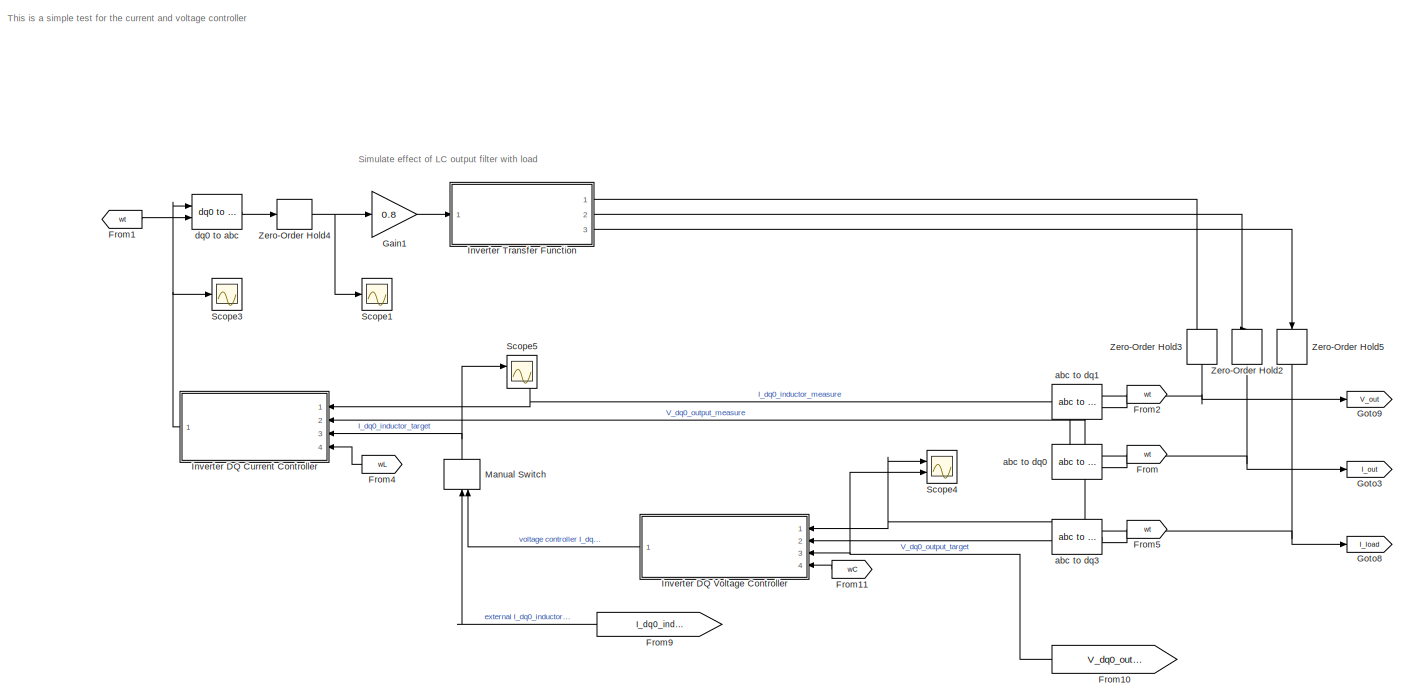
[diagram: root canvas - part 1/2, middle right region]
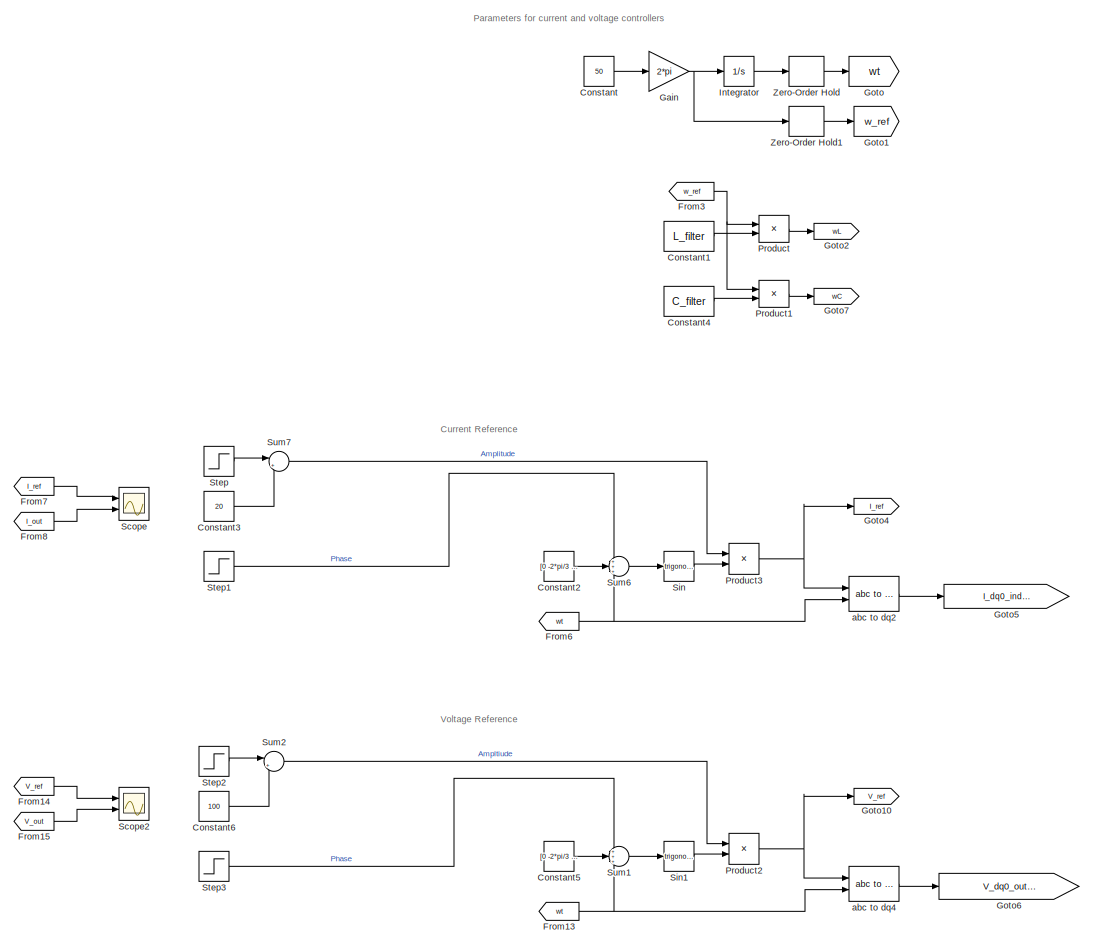
[diagram: root canvas - part 2/2, left side, full height]
MODEL slx_9476d62e2534
KIND model
CONFIG AbsTol = auto
CONFIG EnableMultiTasking = off
CONFIG FixedStep = auto
CONFIG MaxStep = auto
CONFIG MinStep = auto
CONFIG RelTol = 1e-3
CONFIG SampleTimeConstraint = Unconstrained
CONFIG SolverName = VariableStepAuto
CONFIG StartTime = 0.0
CONFIG StopTime = 1
BLOCK [Constant] Constant
  Value = 50
BLOCK [Constant] Constant1
  Value = L_filter
BLOCK [Constant] Constant2
  Value = [0 -2*pi/3 2*pi/3]
BLOCK [Constant] Constant3
  Value = 20
BLOCK [Constant] Constant4
  Value = C_filter
BLOCK [Constant] Constant5
  Value = [0 -2*pi/3 2*pi/3]
BLOCK [Constant] Constant6
  Value = 100
BLOCK [From] From
  GotoTag = wt
  NameLocation = top
BLOCK [From] From1
  GotoTag = wt
BLOCK [From] From10
  GotoTag = V_dq0_output_ref
  NameLocation = top
BLOCK [From] From11
  GotoTag = wC
  NameLocation = top
BLOCK [From] From13
  GotoTag = wt
BLOCK [From] From14
  GotoTag = V_ref
BLOCK [From] From15
  GotoTag = V_out
BLOCK [From] From2
  GotoTag = wt
  NameLocation = top
BLOCK [From] From3
  GotoTag = w_ref
BLOCK [From] From4
  GotoTag = wL
  NameLocation = top
BLOCK [From] From5
  GotoTag = wt
  NameLocation = top
BLOCK [From] From6
  GotoTag = wt
BLOCK [From] From7
  GotoTag = I_ref
BLOCK [From] From8
  GotoTag = I_out
BLOCK [From] From9
  GotoTag = I_dq0_inductor_ref
  NameLocation = top
BLOCK [Gain] Gain
  Gain = 2*pi
BLOCK [Gain] Gain1
  Gain = 0.8
BLOCK [Goto] Goto
  GotoTag = wt
BLOCK [Goto] Goto1
  GotoTag = w_ref
BLOCK [Goto] Goto10
  GotoTag = V_ref
BLOCK [Goto] Goto2
  GotoTag = wL
BLOCK [Goto] Goto3
  GotoTag = I_out
BLOCK [Goto] Goto4
  GotoTag = I_ref
BLOCK [Goto] Goto5
  GotoTag = I_dq0_inductor_ref
BLOCK [Goto] Goto6
  GotoTag = V_dq0_output_ref
BLOCK [Goto] Goto7
  GotoTag = wC
BLOCK [Goto] Goto8
  GotoTag = I_load
BLOCK [Goto] Goto9
  GotoTag = V_out
BLOCK [Integrator] Integrator
  Ports = [1, 1]
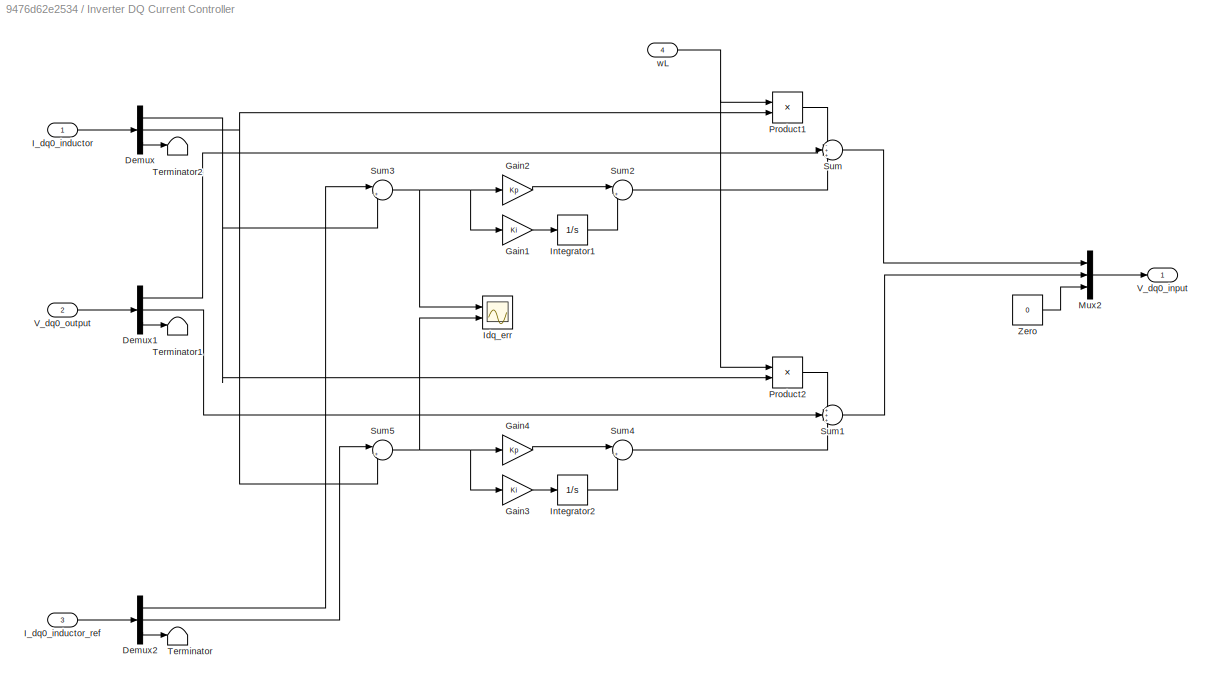
BLOCK [SubSystem] Inverter DQ Current Controller
  NameLocation = top
  Ports = [4, 1]
  RequestExecContextInheritance = off
BLOCK [Demux] Inverter DQ Current Controller/Demux
  NameLocation = top
  Outputs = 3
  Ports = [1, 3]
BLOCK [Demux] Inverter DQ Current Controller/Demux1
  NameLocation = top
  Outputs = 3
  Ports = [1, 3]
BLOCK [Demux] Inverter DQ Current Controller/Demux2
  NameLocation = top
  Outputs = 3
  Ports = [1, 3]
BLOCK [Gain] Inverter DQ Current Controller/Gain1
  Gain = Ki
  NameLocation = top
BLOCK [Gain] Inverter DQ Current Controller/Gain2
  Gain = Kp
  NameLocation = top
BLOCK [Gain] Inverter DQ Current Controller/Gain3
  Gain = Ki
  NameLocation = top
BLOCK [Gain] Inverter DQ Current Controller/Gain4
  Gain = Kp
  NameLocation = top
BLOCK [Inport] Inverter DQ Current Controller/I_dq0_inductor
BLOCK [Inport] Inverter DQ Current Controller/I_dq0_inductor_ref
  NameLocation = top
  Port = 3
BLOCK [Scope] Inverter DQ Current Controller/Idq_err
  Floating = off
  NumInputPorts = 2
  Ports = [2]
  ScopeSpecificationString = Simulink.scopes.TimeScopeBlockCfg('CurrentConfiguration', extmgr.ConfigurationSet(extmgr.Configuration('Core','General UI',true),extmgr.Configuration('Core','Source UI',true),extmgr.Configuration('Sources','WiredSimulink',true,'DataLoggingVariableName','ScopeData2'),extmgr.Configuration('Visuals','Time Domain',true,'SerializedDisplays',{struct('MinYLimReal','-3.13783','MaxYLimReal','7.30076','YLab...<+2079ch>
BLOCK [Integrator] Inverter DQ Current Controller/Integrator1
  LowerSaturationLimit = -10000
  NameLocation = top
  Ports = [1, 1]
  UpperSaturationLimit = 10000
BLOCK [Integrator] Inverter DQ Current Controller/Integrator2
  NameLocation = top
  Ports = [1, 1]
BLOCK [Mux] Inverter DQ Current Controller/Mux2
  DisplayOption = bar
  Inputs = 3
  NameLocation = top
  Ports = [3, 1]
BLOCK [Product] Inverter DQ Current Controller/Product1
  NameLocation = top
  Ports = [2, 1]
BLOCK [Product] Inverter DQ Current Controller/Product2
  NameLocation = top
  Ports = [2, 1]
BLOCK [Sum] Inverter DQ Current Controller/Sum
  Inputs = -++
  NameLocation = top
  Ports = [3, 1]
BLOCK [Sum] Inverter DQ Current Controller/Sum1
  Inputs = +++
  NameLocation = top
  Ports = [3, 1]
BLOCK [Sum] Inverter DQ Current Controller/Sum2
  Inputs = |++
  NameLocation = top
  Ports = [2, 1]
BLOCK [Sum] Inverter DQ Current Controller/Sum3
  Inputs = |+-
  NameLocation = top
  Ports = [2, 1]
BLOCK [Sum] Inverter DQ Current Controller/Sum4
  Inputs = |++
  NameLocation = top
  Ports = [2, 1]
BLOCK [Sum] Inverter DQ Current Controller/Sum5
  Inputs = |+-
  NameLocation = top
  Ports = [2, 1]
BLOCK [Terminator] Inverter DQ Current Controller/Terminator
  NameLocation = top
BLOCK [Terminator] Inverter DQ Current Controller/Terminator1
  NameLocation = top
BLOCK [Terminator] Inverter DQ Current Controller/Terminator2
  NameLocation = top
BLOCK [Outport] Inverter DQ Current Controller/V_dq0_input
  NameLocation = top
BLOCK [Inport] Inverter DQ Current Controller/V_dq0_output
  Port = 2
BLOCK [Constant] Inverter DQ Current Controller/Zero
  NameLocation = top
  OutDataTypeStr = Inherit: Inherit via back propagation
  Value = 0
BLOCK [Inport] Inverter DQ Current Controller/wL
  Port = 4
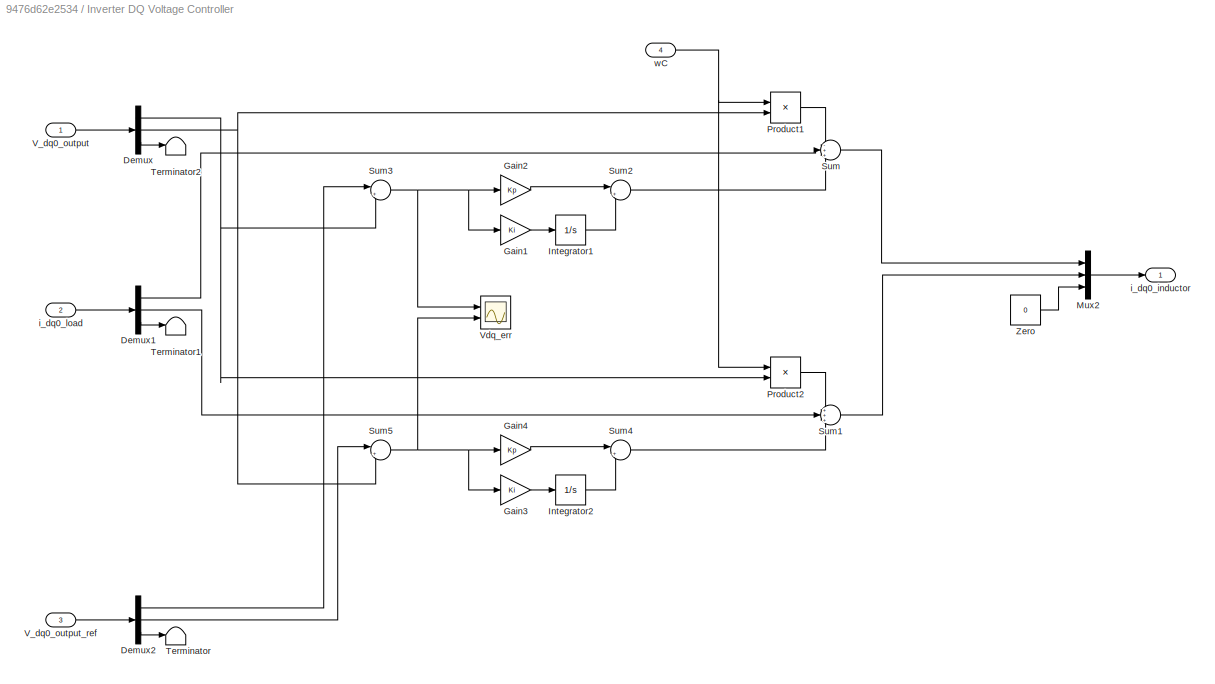
BLOCK [SubSystem] Inverter DQ Voltage Controller
  NameLocation = top
  Ports = [4, 1]
  RequestExecContextInheritance = off
BLOCK [Demux] Inverter DQ Voltage Controller/Demux
  NameLocation = top
  Outputs = 3
  Ports = [1, 3]
BLOCK [Demux] Inverter DQ Voltage Controller/Demux1
  NameLocation = top
  Outputs = 3
  Ports = [1, 3]
BLOCK [Demux] Inverter DQ Voltage Controller/Demux2
  NameLocation = top
  Outputs = 3
  Ports = [1, 3]
BLOCK [Gain] Inverter DQ Voltage Controller/Gain1
  Gain = Ki
  NameLocation = top
BLOCK [Gain] Inverter DQ Voltage Controller/Gain2
  Gain = Kp
  NameLocation = top
BLOCK [Gain] Inverter DQ Voltage Controller/Gain3
  Gain = Ki
  NameLocation = top
BLOCK [Gain] Inverter DQ Voltage Controller/Gain4
  Gain = Kp
  NameLocation = top
BLOCK [Integrator] Inverter DQ Voltage Controller/Integrator1
  LowerSaturationLimit = -10000
  NameLocation = top
  Ports = [1, 1]
  UpperSaturationLimit = 10000
BLOCK [Integrator] Inverter DQ Voltage Controller/Integrator2
  NameLocation = top
  Ports = [1, 1]
BLOCK [Mux] Inverter DQ Voltage Controller/Mux2
  DisplayOption = bar
  Inputs = 3
  NameLocation = top
  Ports = [3, 1]
BLOCK [Product] Inverter DQ Voltage Controller/Product1
  NameLocation = top
  Ports = [2, 1]
BLOCK [Product] Inverter DQ Voltage Controller/Product2
  NameLocation = top
  Ports = [2, 1]
BLOCK [Sum] Inverter DQ Voltage Controller/Sum
  Inputs = -++
  NameLocation = top
  Ports = [3, 1]
BLOCK [Sum] Inverter DQ Voltage Controller/Sum1
  Inputs = +++
  NameLocation = top
  Ports = [3, 1]
BLOCK [Sum] Inverter DQ Voltage Controller/Sum2
  Inputs = |++
  NameLocation = top
  Ports = [2, 1]
BLOCK [Sum] Inverter DQ Voltage Controller/Sum3
  Inputs = |+-
  NameLocation = top
  Ports = [2, 1]
BLOCK [Sum] Inverter DQ Voltage Controller/Sum4
  Inputs = |++
  NameLocation = top
  Ports = [2, 1]
BLOCK [Sum] Inverter DQ Voltage Controller/Sum5
  Inputs = |+-
  NameLocation = top
  Ports = [2, 1]
BLOCK [Terminator] Inverter DQ Voltage Controller/Terminator
  NameLocation = top
BLOCK [Terminator] Inverter DQ Voltage Controller/Terminator1
  NameLocation = top
BLOCK [Terminator] Inverter DQ Voltage Controller/Terminator2
  NameLocation = top
BLOCK [Inport] Inverter DQ Voltage Controller/V_dq0_output
BLOCK [Inport] Inverter DQ Voltage Controller/V_dq0_output_ref
  NameLocation = top
  Port = 3
BLOCK [Scope] Inverter DQ Voltage Controller/Vdq_err
  Floating = off
  NumInputPorts = 2
  Ports = [2]
  ScopeSpecificationString = Simulink.scopes.TimeScopeBlockCfg('CurrentConfiguration', extmgr.ConfigurationSet(extmgr.Configuration('Core','General UI',true),extmgr.Configuration('Core','Source UI',true),extmgr.Configuration('Sources','WiredSimulink',true,'DataLoggingVariableName','ScopeData2'),extmgr.Configuration('Visuals','Time Domain',true,'SerializedDisplays',{struct('MinYLimReal','-676.58887','MaxYLimReal','827.52089','...<+2116ch>
BLOCK [Constant] Inverter DQ Voltage Controller/Zero
  NameLocation = top
  OutDataTypeStr = Inherit: Inherit via back propagation
  Value = 0
BLOCK [Outport] Inverter DQ Voltage Controller/i_dq0_inductor
  NameLocation = top
BLOCK [Inport] Inverter DQ Voltage Controller/i_dq0_load
  Port = 2
BLOCK [Inport] Inverter DQ Voltage Controller/wC
  Port = 4
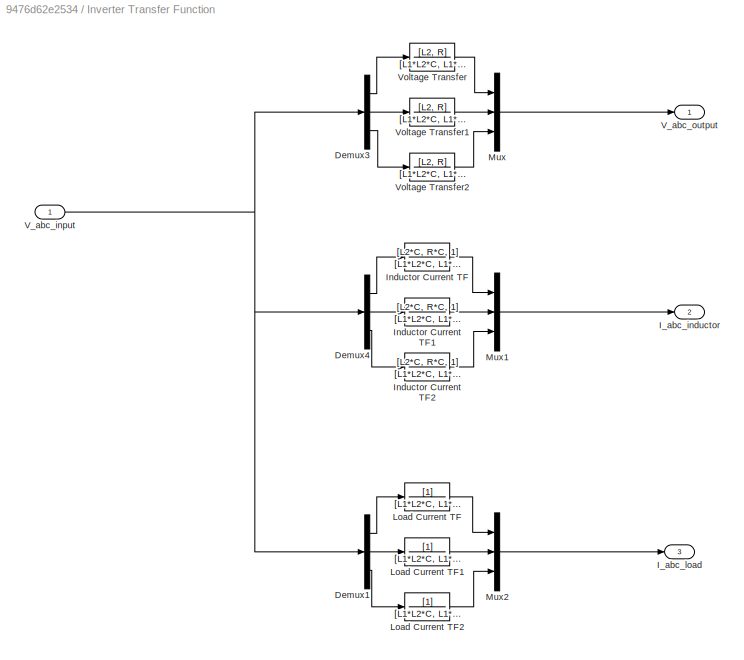
BLOCK [SubSystem] Inverter Transfer Function
  Ports = [1, 3]
  RequestExecContextInheritance = off
BLOCK [Demux] Inverter Transfer Function/Demux1
  Outputs = 3
  Ports = [1, 3]
BLOCK [Demux] Inverter Transfer Function/Demux3
  Outputs = 3
  Ports = [1, 3]
BLOCK [Demux] Inverter Transfer Function/Demux4
  Outputs = 3
  Ports = [1, 3]
BLOCK [Outport] Inverter Transfer Function/I_abc_inductor
  Port = 2
BLOCK [Outport] Inverter Transfer Function/I_abc_load
  Port = 3
BLOCK [TransferFcn] Inverter Transfer Function/Inductor Current TF
  Denominator = [L1*L2*C, L1*R*C, (L1+L2), R]
  Numerator = [L2*C, R*C, 1]
BLOCK [TransferFcn] Inverter Transfer Function/Inductor Current TF1
  Denominator = [L1*L2*C, L1*R*C, (L1+L2), R]
  Numerator = [L2*C, R*C, 1]
BLOCK [TransferFcn] Inverter Transfer Function/Inductor Current TF2
  Denominator = [L1*L2*C, L1*R*C, (L1+L2), R]
  Numerator = [L2*C, R*C, 1]
BLOCK [TransferFcn] Inverter Transfer Function/Load Current TF
  Denominator = [L1*L2*C, L1*R*C, (L1+L2), R]
BLOCK [TransferFcn] Inverter Transfer Function/Load Current TF1
  Denominator = [L1*L2*C, L1*R*C, (L1+L2), R]
BLOCK [TransferFcn] Inverter Transfer Function/Load Current TF2
  Denominator = [L1*L2*C, L1*R*C, (L1+L2), R]
BLOCK [Mux] Inverter Transfer Function/Mux
  DisplayOption = bar
  Inputs = 3
  Ports = [3, 1]
BLOCK [Mux] Inverter Transfer Function/Mux1
  DisplayOption = bar
  Inputs = 3
  Ports = [3, 1]
BLOCK [Mux] Inverter Transfer Function/Mux2
  DisplayOption = bar
  Inputs = 3
  Ports = [3, 1]
BLOCK [Inport] Inverter Transfer Function/V_abc_input
BLOCK [Outport] Inverter Transfer Function/V_abc_output
BLOCK [TransferFcn] Inverter Transfer Function/Voltage Transfer
  Denominator = [L1*L2*C, L1*R*C, (L1+L2), R]
  Numerator = [L2, R]
BLOCK [TransferFcn] Inverter Transfer Function/Voltage Transfer1
  Denominator = [L1*L2*C, L1*R*C, (L1+L2), R]
  Numerator = [L2, R]
BLOCK [TransferFcn] Inverter Transfer Function/Voltage Transfer2
  Denominator = [L1*L2*C, L1*R*C, (L1+L2), R]
  Numerator = [L2, R]
BLOCK [ManualSwitch] Manual Switch
  CurrentSetting = 0
  NameLocation = right
BLOCK [Product] Product
  Ports = [2, 1]
BLOCK [Product] Product1
  Ports = [2, 1]
BLOCK [Product] Product2
  Ports = [2, 1]
BLOCK [Product] Product3
  Ports = [2, 1]
BLOCK [Scope] Scope
  Floating = off
  NumInputPorts = 2
  Ports = [2]
  ScopeSpecificationString = Simulink.scopes.TimeScopeBlockCfg('CurrentConfiguration', extmgr.ConfigurationSet(extmgr.Configuration('Core','General UI',true),extmgr.Configuration('Core','Source UI',true),extmgr.Configuration('Sources','WiredSimulink',true),extmgr.Configuration('Visuals','Time Domain',true,'SerializedDisplays',{struct('MinYLimReal','-30.00000','MaxYLimReal','30.00000','YLabelReal','','MinYLimMag','0.00000','Ma...<+2470ch>
BLOCK [Scope] Scope1
  Floating = off
  NumInputPorts = 1
  Ports = [1]
  ScopeSpecificationString = Simulink.scopes.TimeScopeBlockCfg('CurrentConfiguration', extmgr.ConfigurationSet(extmgr.Configuration('Core','General UI',true),extmgr.Configuration('Core','Source UI',true),extmgr.Configuration('Sources','WiredSimulink',true,'DataLoggingVariableName','ScopeData1'),extmgr.Configuration('Visuals','Time Domain',true,'SerializedDisplays',{struct('MinYLimReal','-1139.7069','MaxYLimReal','867.63778','...<+1506ch>
BLOCK [Scope] Scope2
  Floating = off
  NumInputPorts = 2
  Ports = [2]
  ScopeSpecificationString = Simulink.scopes.TimeScopeBlockCfg('CurrentConfiguration', extmgr.ConfigurationSet(extmgr.Configuration('Core','General UI',true),extmgr.Configuration('Core','Source UI',true),extmgr.Configuration('Sources','WiredSimulink',true,'DataLoggingVariableName','ScopeData4'),extmgr.Configuration('Visuals','Time Domain',true,'SerializedDisplays',{struct('MinYLimReal','-137.5','MaxYLimReal','137.5','YLabelRe...<+2164ch>
BLOCK [Scope] Scope3
  Floating = off
  NumInputPorts = 1
  Ports = [1]
  ScopeSpecificationString = Simulink.scopes.TimeScopeBlockCfg('CurrentConfiguration', extmgr.ConfigurationSet(extmgr.Configuration('Core','General UI',true),extmgr.Configuration('Core','Source UI',true),extmgr.Configuration('Sources','WiredSimulink',true,'DataLoggingVariableName','ScopeData3'),extmgr.Configuration('Visuals','Time Domain',true,'SerializedDisplays',{struct('MinYLimReal','-6596.45162','MaxYLimReal','8121.37696'...<+1510ch>
BLOCK [Scope] Scope4
  Floating = off
  NumInputPorts = 2
  Ports = [2]
  ScopeSpecificationString = Simulink.scopes.TimeScopeBlockCfg('CurrentConfiguration', extmgr.ConfigurationSet(extmgr.Configuration('Core','General UI',true),extmgr.Configuration('Core','Source UI',true),extmgr.Configuration('Sources','WiredSimulink',true,'DataLoggingVariableName','ScopeData1'),extmgr.Configuration('Visuals','Time Domain',true,'SerializedDisplays',{struct('MinYLimReal','-155.03147','MaxYLimReal','156.56086','...<+2306ch>
BLOCK [Scope] Scope5
  Floating = off
  NumInputPorts = 2
  Ports = [2]
  ScopeSpecificationString = Simulink.scopes.TimeScopeBlockCfg('CurrentConfiguration', extmgr.ConfigurationSet(extmgr.Configuration('Core','General UI',true),extmgr.Configuration('Core','Source UI',true),extmgr.Configuration('Sources','WiredSimulink',true,'DataLoggingVariableName','ScopeData5'),extmgr.Configuration('Visuals','Time Domain',true,'SerializedDisplays',{struct('MinYLimReal','-3.3186','MaxYLimReal','3.62168','YLabe...<+2201ch>
BLOCK [Trigonometry] Sin
  Ports = [1, 1]
BLOCK [Trigonometry] Sin1
  Ports = [1, 1]
BLOCK [Step] Step
  After = 4
  SampleTime = 0
  Time = 0.2
BLOCK [Step] Step1
  After = 100 * pi/180
  SampleTime = 0
  Time = 0.4
BLOCK [Step] Step2
  After = 10
  SampleTime = 0
  Time = 0.2
BLOCK [Step] Step3
  After = 100 * pi/180
  SampleTime = 0
  Time = 0.4
BLOCK [Sum] Sum1
  Inputs = +++
  Ports = [3, 1]
BLOCK [Sum] Sum2
  Inputs = |++
  Ports = [2, 1]
BLOCK [Sum] Sum6
  Inputs = +++
  Ports = [3, 1]
BLOCK [Sum] Sum7
  Inputs = |++
  Ports = [2, 1]
BLOCK [ZeroOrderHold] Zero-Order Hold
  SampleTime = Tcs
BLOCK [ZeroOrderHold] Zero-Order Hold1
  SampleTime = Tcs
BLOCK [ZeroOrderHold] Zero-Order Hold2
  NameLocation = left
  SampleTime = Tcs
BLOCK [ZeroOrderHold] Zero-Order Hold3
  NameLocation = left
  SampleTime = Tcs
BLOCK [ZeroOrderHold] Zero-Order Hold4
  SampleTime = Tcs
BLOCK [ZeroOrderHold] Zero-Order Hold5
  NameLocation = left
  SampleTime = Tcs
BLOCK [Reference] abc to dq0  REF=spsabctodq0Lib/abc to dq0
  NameLocation = top
  Ports = [2, 1]
  SourceBlock = spsabctodq0Lib/abc to dq0
  SourceProductBaseCode = PS
  SourceType = abc to dq0 Transformation
BLOCK [Reference] abc to dq1  REF=spsabctodq0Lib/abc to dq0
  NameLocation = top
  Ports = [2, 1]
  SourceBlock = spsabctodq0Lib/abc to dq0
  SourceProductBaseCode = PS
  SourceType = abc to dq0 Transformation
BLOCK [Reference] abc to dq2  REF=spsabctodq0Lib/abc to dq0
  Ports = [2, 1]
  SourceBlock = spsabctodq0Lib/abc to dq0
  SourceProductBaseCode = PS
  SourceType = abc to dq0 Transformation
BLOCK [Reference] abc to dq3  REF=spsabctodq0Lib/abc to dq0
  NameLocation = top
  Ports = [2, 1]
  SourceBlock = spsabctodq0Lib/abc to dq0
  SourceProductBaseCode = PS
  SourceType = abc to dq0 Transformation
BLOCK [Reference] abc to dq4  REF=spsabctodq0Lib/abc to dq0
  Ports = [2, 1]
  SourceBlock = spsabctodq0Lib/abc to dq0
  SourceProductBaseCode = PS
  SourceType = abc to dq0 Transformation
BLOCK [Reference] dq0 to abc  REF=spsdq0toabcLib/dq0 to abc
  Ports = [2, 1]
  SourceBlock = spsdq0toabcLib/dq0 to abc
  SourceProductBaseCode = PS
  SourceType = dq0 to abc Transformation
ANNOTATION (root): This is a simple test for the current and voltage controller
ANNOTATION (root): Current Reference
ANNOTATION (root): Parameters for current and voltage controllers
ANNOTATION (root): Simulate effect of LC output filter with load
ANNOTATION (root): Voltage Reference
LINE Constant1:1 -> Product:2
LINE Constant2:1 -> Sum6:2
LINE Constant3:1 -> Sum7:2
LINE Constant4:1 -> Product1:2
LINE Constant5:1 -> Sum1:2
LINE Constant6:1 -> Sum2:2
LINE Constant:1 -> Gain:1
NET From10:1 -> Inverter DQ Voltage Controller:3, Scope4:2
LINE From11:1 -> Inverter DQ Voltage Controller:4
NET From13:1 -> Sum1:3, abc to dq4:2
LINE From14:1 -> Scope2:1
LINE From15:1 -> Scope2:2
LINE From1:1 -> dq0 to abc:2
LINE From2:1 -> abc to dq1:2
NET From3:1 -> Product1:1, Product:1
LINE From4:1 -> Inverter DQ Current Controller:4
LINE From5:1 -> abc to dq3:2
NET From6:1 -> Sum6:3, abc to dq2:2
LINE From7:1 -> Scope:1
LINE From8:1 -> Scope:2
LINE From9:1 -> Manual Switch:1
LINE From:1 -> abc to dq0:2
LINE Gain1:1 -> Inverter Transfer Function:1
NET Gain:1 -> Integrator:1, Zero-Order Hold1:1
LINE Integrator:1 -> Zero-Order Hold:1
LINE Inverter DQ Current Controller/Demux1:1 -> Inverter DQ Current Controller/Sum:2
LINE Inverter DQ Current Controller/Demux1:2 -> Inverter DQ Current Controller/Sum1:2
LINE Inverter DQ Current Controller/Demux1:3 -> Inverter DQ Current Controller/Terminator1:1
LINE Inverter DQ Current Controller/Demux2:1 -> Inverter DQ Current Controller/Sum3:1
LINE Inverter DQ Current Controller/Demux2:2 -> Inverter DQ Current Controller/Sum5:1
LINE Inverter DQ Current Controller/Demux2:3 -> Inverter DQ Current Controller/Terminator:1
NET Inverter DQ Current Controller/Demux:1 -> Inverter DQ Current Controller/Product2:2, Inverter DQ Current Controller/Sum3:2
NET Inverter DQ Current Controller/Demux:2 -> Inverter DQ Current Controller/Product1:2, Inverter DQ Current Controller/Sum5:2
LINE Inverter DQ Current Controller/Demux:3 -> Inverter DQ Current Controller/Terminator2:1
LINE Inverter DQ Current Controller/Gain1:1 -> Inverter DQ Current Controller/Integrator1:1
LINE Inverter DQ Current Controller/Gain2:1 -> Inverter DQ Current Controller/Sum2:1
LINE Inverter DQ Current Controller/Gain3:1 -> Inverter DQ Current Controller/Integrator2:1
LINE Inverter DQ Current Controller/Gain4:1 -> Inverter DQ Current Controller/Sum4:1
LINE Inverter DQ Current Controller/I_dq0_inductor:1 -> Inverter DQ Current Controller/Demux:1
LINE Inverter DQ Current Controller/I_dq0_inductor_ref:1 -> Inverter DQ Current Controller/Demux2:1
LINE Inverter DQ Current Controller/Integrator1:1 -> Inverter DQ Current Controller/Sum2:2
LINE Inverter DQ Current Controller/Integrator2:1 -> Inverter DQ Current Controller/Sum4:2
LINE Inverter DQ Current Controller/Mux2:1 -> Inverter DQ Current Controller/V_dq0_input:1
LINE Inverter DQ Current Controller/Product1:1 -> Inverter DQ Current Controller/Sum:1
LINE Inverter DQ Current Controller/Product2:1 -> Inverter DQ Current Controller/Sum1:1
LINE Inverter DQ Current Controller/Sum1:1 -> Inverter DQ Current Controller/Mux2:2
LINE Inverter DQ Current Controller/Sum2:1 -> Inverter DQ Current Controller/Sum:3
NET Inverter DQ Current Controller/Sum3:1 -> Inverter DQ Current Controller/Gain1:1, Inverter DQ Current Controller/Gain2:1, Inverter DQ Current Controller/Idq_err:1
LINE Inverter DQ Current Controller/Sum4:1 -> Inverter DQ Current Controller/Sum1:3
NET Inverter DQ Current Controller/Sum5:1 -> Inverter DQ Current Controller/Gain3:1, Inverter DQ Current Controller/Gain4:1, Inverter DQ Current Controller/Idq_err:2
LINE Inverter DQ Current Controller/Sum:1 -> Inverter DQ Current Controller/Mux2:1
LINE Inverter DQ Current Controller/V_dq0_output:1 -> Inverter DQ Current Controller/Demux1:1
LINE Inverter DQ Current Controller/Zero:1 -> Inverter DQ Current Controller/Mux2:3
NET Inverter DQ Current Controller/wL:1 -> Inverter DQ Current Controller/Product1:1, Inverter DQ Current Controller/Product2:1
NET Inverter DQ Current Controller:1 -> Scope3:1, dq0 to abc:1
LINE Inverter DQ Voltage Controller/Demux1:1 -> Inverter DQ Voltage Controller/Sum:2
LINE Inverter DQ Voltage Controller/Demux1:2 -> Inverter DQ Voltage Controller/Sum1:2
LINE Inverter DQ Voltage Controller/Demux1:3 -> Inverter DQ Voltage Controller/Terminator1:1
LINE Inverter DQ Voltage Controller/Demux2:1 -> Inverter DQ Voltage Controller/Sum3:1
LINE Inverter DQ Voltage Controller/Demux2:2 -> Inverter DQ Voltage Controller/Sum5:1
LINE Inverter DQ Voltage Controller/Demux2:3 -> Inverter DQ Voltage Controller/Terminator:1
NET Inverter DQ Voltage Controller/Demux:1 -> Inverter DQ Voltage Controller/Product2:2, Inverter DQ Voltage Controller/Sum3:2
NET Inverter DQ Voltage Controller/Demux:2 -> Inverter DQ Voltage Controller/Product1:2, Inverter DQ Voltage Controller/Sum5:2
LINE Inverter DQ Voltage Controller/Demux:3 -> Inverter DQ Voltage Controller/Terminator2:1
LINE Inverter DQ Voltage Controller/Gain1:1 -> Inverter DQ Voltage Controller/Integrator1:1
LINE Inverter DQ Voltage Controller/Gain2:1 -> Inverter DQ Voltage Controller/Sum2:1
LINE Inverter DQ Voltage Controller/Gain3:1 -> Inverter DQ Voltage Controller/Integrator2:1
LINE Inverter DQ Voltage Controller/Gain4:1 -> Inverter DQ Voltage Controller/Sum4:1
LINE Inverter DQ Voltage Controller/Integrator1:1 -> Inverter DQ Voltage Controller/Sum2:2
LINE Inverter DQ Voltage Controller/Integrator2:1 -> Inverter DQ Voltage Controller/Sum4:2
LINE Inverter DQ Voltage Controller/Mux2:1 -> Inverter DQ Voltage Controller/i_dq0_inductor:1
LINE Inverter DQ Voltage Controller/Product1:1 -> Inverter DQ Voltage Controller/Sum:1
LINE Inverter DQ Voltage Controller/Product2:1 -> Inverter DQ Voltage Controller/Sum1:1
LINE Inverter DQ Voltage Controller/Sum1:1 -> Inverter DQ Voltage Controller/Mux2:2
LINE Inverter DQ Voltage Controller/Sum2:1 -> Inverter DQ Voltage Controller/Sum:3
NET Inverter DQ Voltage Controller/Sum3:1 -> Inverter DQ Voltage Controller/Gain1:1, Inverter DQ Voltage Controller/Gain2:1, Inverter DQ Voltage Controller/Vdq_err:1
LINE Inverter DQ Voltage Controller/Sum4:1 -> Inverter DQ Voltage Controller/Sum1:3
NET Inverter DQ Voltage Controller/Sum5:1 -> Inverter DQ Voltage Controller/Gain3:1, Inverter DQ Voltage Controller/Gain4:1, Inverter DQ Voltage Controller/Vdq_err:2
LINE Inverter DQ Voltage Controller/Sum:1 -> Inverter DQ Voltage Controller/Mux2:1
LINE Inverter DQ Voltage Controller/V_dq0_output:1 -> Inverter DQ Voltage Controller/Demux:1
LINE Inverter DQ Voltage Controller/V_dq0_output_ref:1 -> Inverter DQ Voltage Controller/Demux2:1
LINE Inverter DQ Voltage Controller/Zero:1 -> Inverter DQ Voltage Controller/Mux2:3
LINE Inverter DQ Voltage Controller/i_dq0_load:1 -> Inverter DQ Voltage Controller/Demux1:1
NET Inverter DQ Voltage Controller/wC:1 -> Inverter DQ Voltage Controller/Product1:1, Inverter DQ Voltage Controller/Product2:1
LINE Inverter DQ Voltage Controller:1 -> Manual Switch:2
LINE Inverter Transfer Function/Demux1:1 -> Inverter Transfer Function/Load Current TF:1
LINE Inverter Transfer Function/Demux1:2 -> Inverter Transfer Function/Load Current TF1:1
LINE Inverter Transfer Function/Demux1:3 -> Inverter Transfer Function/Load Current TF2:1
LINE Inverter Transfer Function/Demux3:1 -> Inverter Transfer Function/Voltage Transfer:1
LINE Inverter Transfer Function/Demux3:2 -> Inverter Transfer Function/Voltage Transfer1:1
LINE Inverter Transfer Function/Demux3:3 -> Inverter Transfer Function/Voltage Transfer2:1
LINE Inverter Transfer Function/Demux4:1 -> Inverter Transfer Function/Inductor Current TF:1
LINE Inverter Transfer Function/Demux4:2 -> Inverter Transfer Function/Inductor Current TF1:1
LINE Inverter Transfer Function/Demux4:3 -> Inverter Transfer Function/Inductor Current TF2:1
LINE Inverter Transfer Function/Inductor Current TF1:1 -> Inverter Transfer Function/Mux1:2
LINE Inverter Transfer Function/Inductor Current TF2:1 -> Inverter Transfer Function/Mux1:3
LINE Inverter Transfer Function/Inductor Current TF:1 -> Inverter Transfer Function/Mux1:1
LINE Inverter Transfer Function/Load Current TF1:1 -> Inverter Transfer Function/Mux2:2
LINE Inverter Transfer Function/Load Current TF2:1 -> Inverter Transfer Function/Mux2:3
LINE Inverter Transfer Function/Load Current TF:1 -> Inverter Transfer Function/Mux2:1
LINE Inverter Transfer Function/Mux1:1 -> Inverter Transfer Function/I_abc_inductor:1
LINE Inverter Transfer Function/Mux2:1 -> Inverter Transfer Function/I_abc_load:1
LINE Inverter Transfer Function/Mux:1 -> Inverter Transfer Function/V_abc_output:1
NET Inverter Transfer Function/V_abc_input:1 -> Inverter Transfer Function/Demux1:1, Inverter Transfer Function/Demux3:1, Inverter Transfer Function/Demux4:1
LINE Inverter Transfer Function/Voltage Transfer1:1 -> Inverter Transfer Function/Mux:2
LINE Inverter Transfer Function/Voltage Transfer2:1 -> Inverter Transfer Function/Mux:3
LINE Inverter Transfer Function/Voltage Transfer:1 -> Inverter Transfer Function/Mux:1
LINE Inverter Transfer Function:1 -> Zero-Order Hold3:1
LINE Inverter Transfer Function:2 -> Zero-Order Hold2:1
LINE Inverter Transfer Function:3 -> Zero-Order Hold5:1
NET Manual Switch:1 -> Inverter DQ Current Controller:3, Scope5:1
LINE Product1:1 -> Goto7:1
NET Product2:1 -> Goto10:1, abc to dq4:1
NET Product3:1 -> Goto4:1, abc to dq2:1
LINE Product:1 -> Goto2:1
LINE Sin1:1 -> Product2:2
LINE Sin:1 -> Product3:2
LINE Step1:1 -> Sum6:1
LINE Step2:1 -> Sum2:1
LINE Step3:1 -> Sum1:1
LINE Step:1 -> Sum7:1
LINE Sum1:1 -> Sin1:1
LINE Sum2:1 -> Product2:1
LINE Sum6:1 -> Sin:1
LINE Sum7:1 -> Product3:1
LINE Zero-Order Hold1:1 -> Goto1:1
NET Zero-Order Hold2:1 -> Goto3:1, abc to dq0:1
NET Zero-Order Hold3:1 -> Goto9:1, abc to dq1:1
NET Zero-Order Hold4:1 -> Gain1:1, Scope1:1
NET Zero-Order Hold5:1 -> Goto8:1, abc to dq3:1
LINE Zero-Order Hold:1 -> Goto:1
NET abc to dq0:1 -> Inverter DQ Current Controller:1, Scope5:2
NET abc to dq1:1 -> Inverter DQ Current Controller:2, Inverter DQ Voltage Controller:1, Scope4:1
LINE abc to dq2:1 -> Goto5:1
LINE abc to dq3:1 -> Inverter DQ Voltage Controller:2
LINE abc to dq4:1 -> Goto6:1
LINE dq0 to abc:1 -> Zero-Order Hold4:1
note: NET lines group one-source signal fan-out (src -> all destinations, sorted); 1:1 wires keep LINE
